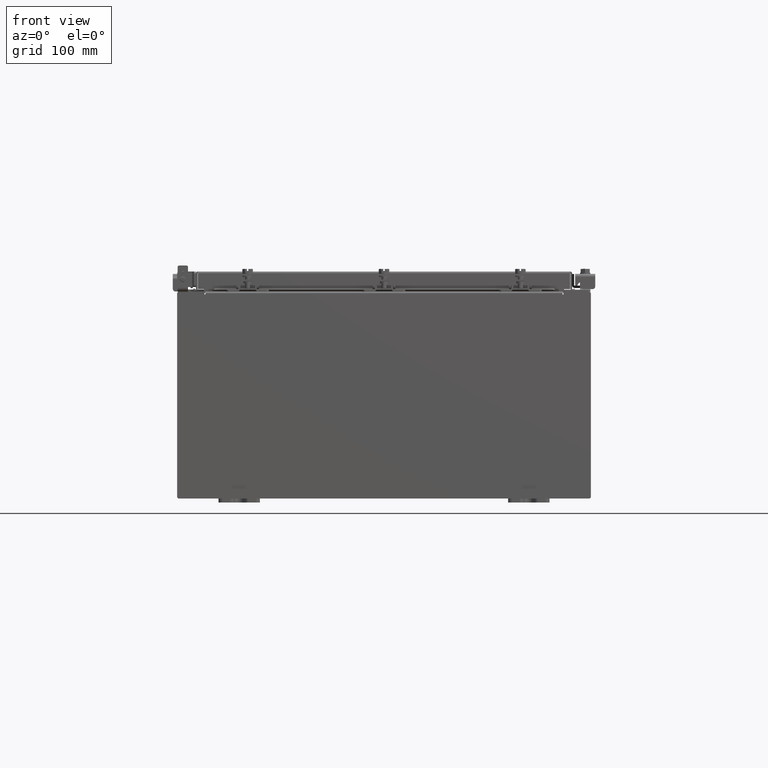
[diagram: clean part render]
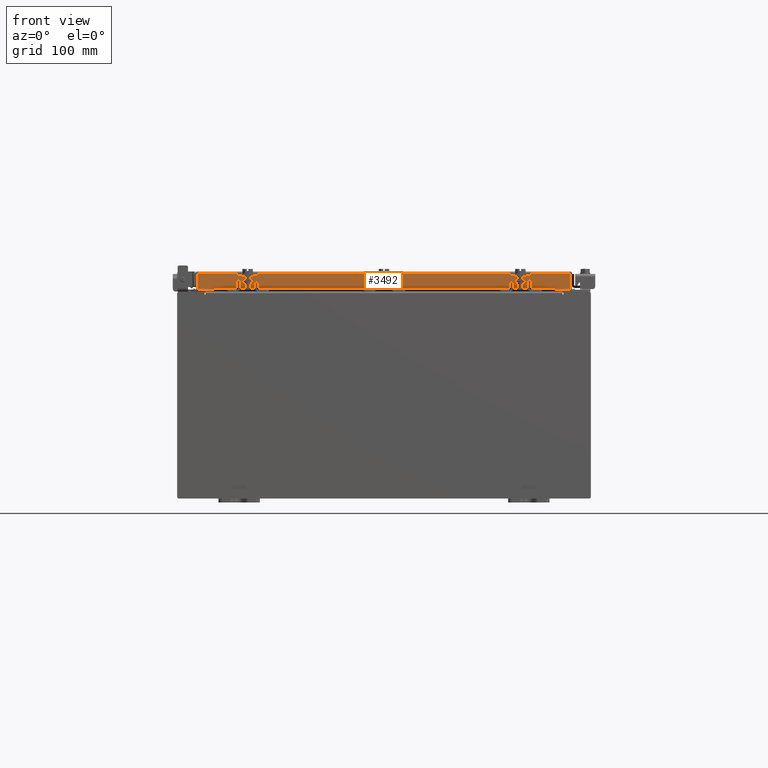
[diagram: same view with one face highlighted and labeled with its STEP entity id]
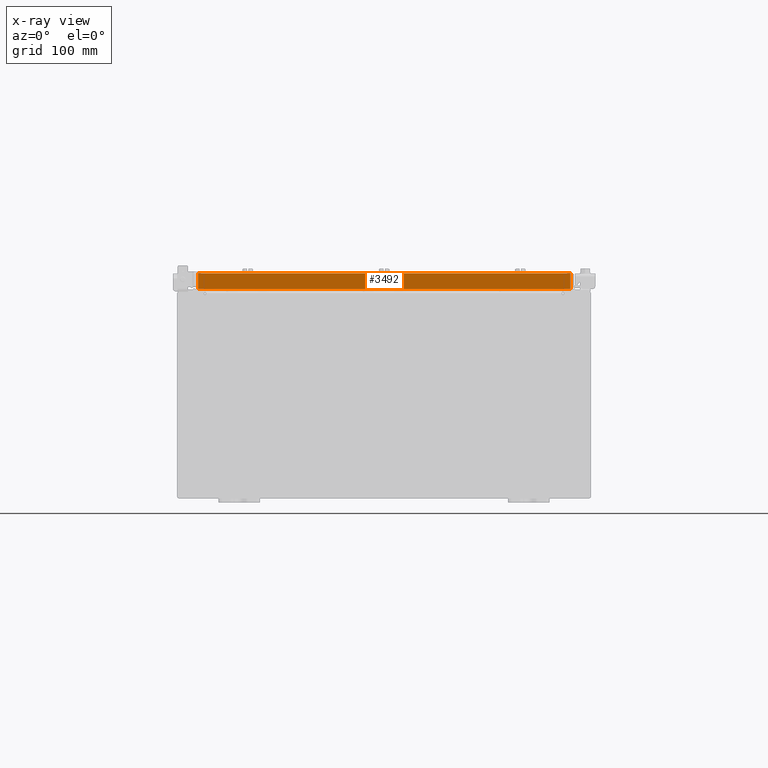
[diagram: x-ray of the same camera — body ghosted, the highlighted face saturated]
A machine part, front view. The second image highlights one B-rep face of the part: STEP entity #3492.
The next image is the same camera in x-ray: the body ghosted, the highlighted face saturated — about 0% of this face is hidden behind the body in this view.
In plain terms, the highlighted planar face has unit normal (-0, 1, -0).
Its self-contained STEP definition (entity closure, byte-faithful):
#192 = CARTESIAN_POINT ( 'NONE',  ( 8.255157864376261800, -11.09399999999999900, -0.8500000000000020900 ) ) ;
#291 = VECTOR ( 'NONE', #21416, 39.37007874015748100 ) ;
#456 = FACE_OUTER_BOUND ( 'NONE', #17041, .T. ) ;
#832 = CARTESIAN_POINT ( 'NONE',  ( -9.005157864376270600, -11.09399999999999900, -0.8499999999999977600 ) ) ;
#981 = CARTESIAN_POINT ( 'NONE',  ( 9.005157864376265300, -11.09399999999999800, -0.07470000000000015500 ) ) ;
#1557 = LINE ( 'NONE', #12885, #19585 ) ;
#1720 = DIRECTION ( 'NONE',  ( 1.000000000000000000, 3.387180227794633400E-031, -9.232666117091638000E-046 ) ) ;
#3444 = VECTOR ( 'NONE', #1720, 39.37007874015748100 ) ;
#3492 = ADVANCED_FACE ( 'NONE', ( #456 ), #13703, .F. ) ;
#3898 = CARTESIAN_POINT ( 'NONE',  ( 9.005157864376265300, -11.09399999999999900, -0.8499999999999999800 ) ) ;
#4186 = DIRECTION ( 'NONE',  ( -1.000000000000000000, 0.0000000000000000000, 0.0000000000000000000 ) ) ;
#4470 = DIRECTION ( 'NONE',  ( -1.000000000000000000, 4.379057701015054300E-047, 1.201604571657912400E-016 ) ) ;
#4897 = CARTESIAN_POINT ( 'NONE',  ( 9.005157864376265300, -11.09399999999999800, -0.08770000000000026400 ) ) ;
#5086 = DIRECTION ( 'NONE',  ( 0.0000000000000000000, 2.818880942772360100E-015, 1.000000000000000000 ) ) ;
#5200 = CARTESIAN_POINT ( 'NONE',  ( 9.093999999999997600, -11.09399999999999900, -0.8499999999999999800 ) ) ;
#6863 = VERTEX_POINT ( 'NONE', #3898 ) ;
#6916 = VECTOR ( 'NONE', #6954, 39.37007874015748100 ) ;
#6954 = DIRECTION ( 'NONE',  ( -1.000000000000000000, 4.379057701015054300E-047, 1.201604571657912400E-016 ) ) ;
#7208 = VECTOR ( 'NONE', #4470, 39.37007874015748100 ) ;
#7801 = EDGE_CURVE ( 'NONE', #17273, #6863, #20632, .T. ) ;
#7944 = VERTEX_POINT ( 'NONE', #22159 ) ;
#9269 = CARTESIAN_POINT ( 'NONE',  ( -9.005157864376270600, -11.09399999999999800, 3.059669752903974500E-014 ) ) ;
#9509 = ORIENTED_EDGE ( 'NONE', *, *, #10464, .F. ) ;
#9609 = LINE ( 'NONE', #9269, #291 ) ;
#9892 = VERTEX_POINT ( 'NONE', #16315 ) ;
#10464 = EDGE_CURVE ( 'NONE', #6863, #18801, #12388, .T. ) ;
#11037 = ORIENTED_EDGE ( 'NONE', *, *, #22083, .F. ) ;
#11401 = VECTOR ( 'NONE', #13234, 39.37007874015748100 ) ;
#12130 = ORIENTED_EDGE ( 'NONE', *, *, #7801, .F. ) ;
#12191 = LINE ( 'NONE', #13975, #3444 ) ;
#12388 = LINE ( 'NONE', #16681, #7208 ) ;
#12885 = CARTESIAN_POINT ( 'NONE',  ( 8.255157864376261800, -11.09399999999999900, -0.8500000000000020900 ) ) ;
#13234 = DIRECTION ( 'NONE',  ( -0.0000000000000000000, -2.818880942772360100E-015, -1.000000000000000000 ) ) ;
#13703 = PLANE ( 'NONE',  #16902 ) ;
#13975 = CARTESIAN_POINT ( 'NONE',  ( 9.093999999999997600, -11.09399999999999800, -0.08770000000000026400 ) ) ;
#14500 = EDGE_CURVE ( 'NONE', #9892, #21066, #9609, .T. ) ;
#15138 = ORIENTED_EDGE ( 'NONE', *, *, #14500, .T. ) ;
#15557 = DIRECTION ( 'NONE',  ( -3.387180227794633400E-031, 1.000000000000000000, -2.818880942772360100E-015 ) ) ;
#16283 = ORIENTED_EDGE ( 'NONE', *, *, #17416, .F. ) ;
#16315 = CARTESIAN_POINT ( 'NONE',  ( -9.005157864376270600, -11.09399999999999800, -0.08770000000000026400 ) ) ;
#16681 = CARTESIAN_POINT ( 'NONE',  ( 9.093999999999997600, -11.09399999999999900, -0.8499999999999999800 ) ) ;
#16902 = AXIS2_PLACEMENT_3D ( 'NONE', #18937, #15557, #5086 ) ;
#17041 = EDGE_LOOP ( 'NONE', ( #11037, #15138, #16283, #21338, #9509, #12130 ) ) ;
#17273 = VERTEX_POINT ( 'NONE', #4897 ) ;
#17416 = EDGE_CURVE ( 'NONE', #7944, #21066, #20773, .T. ) ;
#18801 = VERTEX_POINT ( 'NONE', #192 ) ;
#18937 = CARTESIAN_POINT ( 'NONE',  ( 0.0000000000000000000, -11.09399999999999800, 3.059669752903974500E-014 ) ) ;
#19585 = VECTOR ( 'NONE', #4186, 39.37007874015748100 ) ;
#20305 = EDGE_CURVE ( 'NONE', #18801, #7944, #1557, .T. ) ;
#20632 = LINE ( 'NONE', #981, #11401 ) ;
#20773 = LINE ( 'NONE', #5200, #6916 ) ;
#21066 = VERTEX_POINT ( 'NONE', #832 ) ;
#21338 = ORIENTED_EDGE ( 'NONE', *, *, #20305, .F. ) ;
#21416 = DIRECTION ( 'NONE',  ( 0.0000000000000000000, -2.818880942772360100E-015, -1.000000000000000000 ) ) ;
#22083 = EDGE_CURVE ( 'NONE', #9892, #17273, #12191, .T. ) ;
#22159 = CARTESIAN_POINT ( 'NONE',  ( -8.255157864376268900, -11.09399999999999900, -0.8500000000000020900 ) ) ;